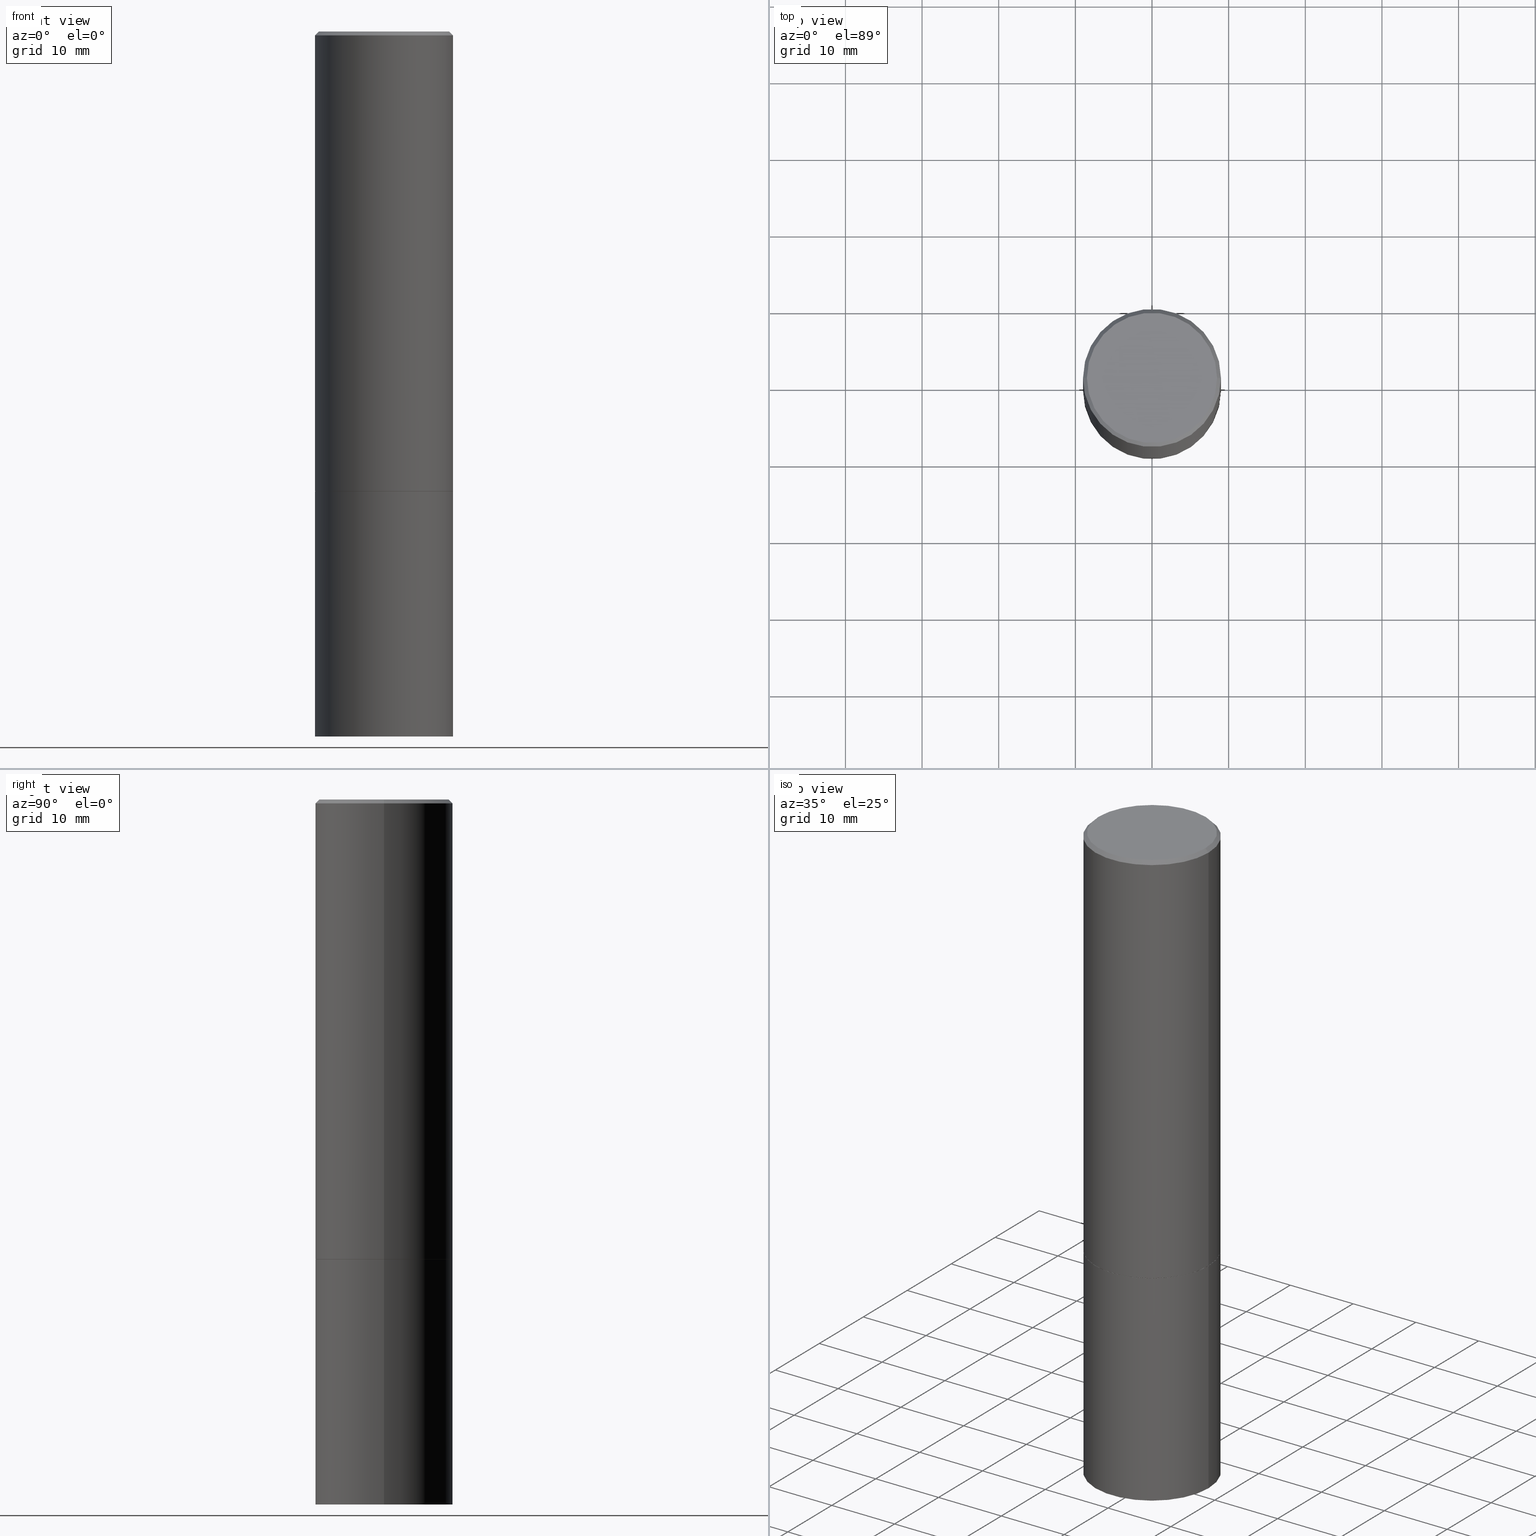
[diagram: canonical four-view strip — front | top / right | iso, engineering-drawing reading convention]
A machine part, canonical four-view strip (front | top / right | iso — engineering-drawing reading convention). The complete STEP part file that produces these views, byte-faithful:
ISO-10303-21;
HEADER;
FILE_DESCRIPTION (( 'STEP AP203' ),
    '1' );
FILE_NAME ('46372.STEP',
    '2024-02-28T10:33:42',
    ( '' ),
    ( '' ),
    'SwSTEP 2.0',
    'SolidWorks 2023',
    '' );
FILE_SCHEMA (( 'CONFIG_CONTROL_DESIGN' ));
ENDSEC;

DATA;
#1 = ORIENTED_EDGE ( 'NONE', *, *, #338, .T. ) ;
#2 = DIRECTION ( 'NONE',  ( -2.445468806185136597E-29, 3.491481338843145583E-15, 1.000000000000000000 ) ) ;
#3 = APPROVAL_STATUS ( 'not_yet_approved' ) ;
#4 = CIRCLE ( 'NONE', #339, 0.3543499999999999983 ) ;
#5 = EDGE_CURVE ( 'NONE', #284, #71, #72, .T. ) ;
#6 = CARTESIAN_POINT ( 'NONE',  ( 5.774240945164344150E-29, -8.244085737276433464E-15, -2.361199999999999743 ) ) ;
#7 = CARTESIAN_POINT ( 'NONE',  ( 4.890937612370293302E-31, -6.982962677686318726E-17, -0.02000000000000008021 ) ) ;
#8 = CC_DESIGN_PERSON_AND_ORGANIZATION_ASSIGNMENT ( #92, #320, ( #309 ) ) ;
#9 = CARTESIAN_POINT ( 'NONE',  ( 0.000000000000000000, 0.000000000000000000, 0.000000000000000000 ) ) ;
#10 = DIRECTION ( 'NONE',  ( 1.000000000000000000, -6.982962677686268288E-15, 0.000000000000000000 ) ) ;
#11 = AXIS2_PLACEMENT_3D ( 'NONE', #350, #103, #73 ) ;
#12 = CONICAL_SURFACE ( 'NONE', #41, 0.3533499999999999974, 0.7853981633974141952 ) ;
#13 = EDGE_CURVE ( 'NONE', #62, #360, #330, .T. ) ;
#14 = CARTESIAN_POINT ( 'NONE',  ( -0.3533499999999999974, -5.731576007458741264E-15, -2.362199999999999633 ) ) ;
#15 = DIRECTION ( 'NONE',  ( -2.445468806185136597E-29, 3.491481338843145583E-15, 1.000000000000000000 ) ) ;
#16 = FACE_OUTER_BOUND ( 'NONE', #224, .T. ) ;
#17 =( NAMED_UNIT ( * ) PLANE_ANGLE_UNIT ( ) SI_UNIT ( $, .RADIAN. ) );
#18 = CYLINDRICAL_SURFACE ( 'NONE', #32, 0.3543499999999998873 ) ;
#19 = DIRECTION ( 'NONE',  ( -2.445468806185136597E-29, 3.491481338843145583E-15, 1.000000000000000000 ) ) ;
#20 = ORIENTED_EDGE ( 'NONE', *, *, #239, .T. ) ;
#21 = CC_DESIGN_DATE_AND_TIME_ASSIGNMENT ( #94, #316, ( #258 ) ) ;
#22 = DIRECTION ( 'NONE',  ( 1.000000000000000000, -6.982962677686265922E-15, 0.000000000000000000 ) ) ;
#23 = CARTESIAN_POINT ( 'NONE',  ( 0.3533499999999999974, -1.071500708077572033E-14, -2.362199999999999633 ) ) ;
#24 = VECTOR ( 'NONE', #100, 39.37007874015748143 ) ;
#25 = PRODUCT_DEFINITION_FORMATION_WITH_SPECIFIED_SOURCE ( 'ANY', '', #309, .NOT_KNOWN. ) ;
#26 = EDGE_CURVE ( 'NONE', #151, #29, #81, .T. ) ;
#27 = ORIENTED_EDGE ( 'NONE', *, *, #170, .F. ) ;
#28 = FACE_OUTER_BOUND ( 'NONE', #96, .T. ) ;
#29 = VERTEX_POINT ( 'NONE', #45 ) ;
#30 = CARTESIAN_POINT ( 'NONE',  ( 2.334753571284400520E-15, 0.3343499999999996475, -1.165242529397154385E-15 ) ) ;
#31 = COORDINATED_UNIVERSAL_TIME_OFFSET ( 5, 0, .BEHIND. ) ;
#32 = AXIS2_PLACEMENT_3D ( 'NONE', #270, #76, #52 ) ;
#33 = ORIENTED_EDGE ( 'NONE', *, *, #366, .T. ) ;
#34 = CIRCLE ( 'NONE', #262, 0.3543499999999997208 ) ;
#35 = APPROVAL_DATE_TIME ( #279, #246 ) ;
#36 = ORIENTED_EDGE ( 'NONE', *, *, #5, .T. ) ;
#37 = DIRECTION ( 'NONE',  ( 2.438088387897960049E-29, -3.491481338843145188E-15, -1.000000000000000000 ) ) ;
#38 = VERTEX_POINT ( 'NONE', #183 ) ;
#39 = APPROVAL ( #288, 'UNSPECIFIED' ) ;
#40 = ADVANCED_FACE ( 'NONE', ( #326 ), #18, .T. ) ;
#41 = AXIS2_PLACEMENT_3D ( 'NONE', #250, #19, #113 ) ;
#42 = EDGE_LOOP ( 'NONE', ( #167, #141, #1, #280 ) ) ;
#43 = DIRECTION ( 'NONE',  ( 1.000000000000000000, -6.982962677686268288E-15, 0.000000000000000000 ) ) ;
#44 = CARTESIAN_POINT ( 'NONE',  ( 4.890937612370293302E-31, -6.982962677686318726E-17, -0.02000000000000008021 ) ) ;
#45 = CARTESIAN_POINT ( 'NONE',  ( -0.3543499999999997208, 2.404583198061263424E-15, -0.02000000000000008021 ) ) ;
#46 = VECTOR ( 'NONE', #79, 39.37007874015748143 ) ;
#47 = APPROVAL_PERSON_ORGANIZATION ( #121, #246, #229 ) ;
#48 = DIRECTION ( 'NONE',  ( 0.000000000000000000, 0.000000000000000000, 1.000000000000000000 ) ) ;
#49 = DIRECTION ( 'NONE',  ( -2.445468806185136597E-29, 3.491481338843145583E-15, 1.000000000000000000 ) ) ;
#50 = CARTESIAN_POINT ( 'NONE',  ( 0.3543499999999999983, -1.071849856211456176E-14, -2.361199999999999743 ) ) ;
#51 = AXIS2_PLACEMENT_3D ( 'NONE', #150, #349, #10 ) ;
#52 = DIRECTION ( 'NONE',  ( 1.000000000000000000, -6.982962677686266711E-15, 4.876176775795935232E-29 ) ) ;
#53 = PLANE ( 'NONE',  #82 ) ;
#54 = VERTEX_POINT ( 'NONE', #351 ) ;
#55 = AXIS2_PLACEMENT_3D ( 'NONE', #178, #209, #235 ) ;
#56 = APPROVAL_PERSON_ORGANIZATION ( #70, #318, #348 ) ;
#57 = ORIENTED_EDGE ( 'NONE', *, *, #337, .T. ) ;
#58 = PLANE ( 'NONE',  #344 ) ;
#59 = DIRECTION ( 'NONE',  ( 2.438088387897960049E-29, -3.491481338843145188E-15, -1.000000000000000000 ) ) ;
#60 = EDGE_LOOP ( 'NONE', ( #36, #175, #159, #335 ) ) ;
#61 = COORDINATED_UNIVERSAL_TIME_OFFSET ( 5, 0, .BEHIND. ) ;
#62 = VERTEX_POINT ( 'NONE', #129 ) ;
#63 = COORDINATED_UNIVERSAL_TIME_OFFSET ( 5, 0, .BEHIND. ) ;
#64 = CIRCLE ( 'NONE', #314, 0.3543499999999997208 ) ;
#65 = PERSON_AND_ORGANIZATION ( #69, #232 ) ;
#66 = DIRECTION ( 'NONE',  ( 1.000000000000000000, -6.982962677686266711E-15, 4.876061227832602160E-29 ) ) ;
#67 = EDGE_CURVE ( 'NONE', #54, #62, #263, .T. ) ;
#68 = ORIENTED_EDGE ( 'NONE', *, *, #133, .T. ) ;
#69 = PERSON ( 'UNSPECIFIED', 'UNSPECIFIED', 'UNSPECIFIED', ('UNSPECIFIED'), ('UNSPECIFIED'), ('UNSPECIFIED') ) ;
#70 = PERSON_AND_ORGANIZATION ( #69, #232 ) ;
#71 = VERTEX_POINT ( 'NONE', #14 ) ;
#72 = CIRCLE ( 'NONE', #11, 0.3533499999999999974 ) ;
#73 = DIRECTION ( 'NONE',  ( 1.000000000000000000, -6.982962677686265133E-15, 0.000000000000000000 ) ) ;
#74 = CARTESIAN_POINT ( 'NONE',  ( 5.774240945164344150E-29, -8.244085737276433464E-15, -2.361199999999999743 ) ) ;
#75 = CC_DESIGN_PERSON_AND_ORGANIZATION_ASSIGNMENT ( #119, #177, ( #25 ) ) ;
#76 = DIRECTION ( 'NONE',  ( -2.445468806185136597E-29, 3.491481338843145583E-15, 1.000000000000000000 ) ) ;
#77 = CARTESIAN_POINT ( 'NONE',  ( -0.3533499999999999974, -5.736874461806963666E-15, -2.362199999999999633 ) ) ;
#78 = LOCAL_TIME ( 5, 33, 42.00000000000000000, #225 ) ;
#79 = DIRECTION ( 'NONE',  ( 0.7071067811865471286, -7.319954787623254468E-15, -0.7071067811865479058 ) ) ;
#80 = EDGE_CURVE ( 'NONE', #240, #312, #296, .T. ) ;
#81 = LINE ( 'NONE', #266, #154 ) ;
#82 = AXIS2_PLACEMENT_3D ( 'NONE', #30, #304, #273 ) ;
#83 = CARTESIAN_POINT ( 'NONE',  ( 5.776686413970529753E-29, -8.247577218615278049E-15, -2.362199999999999633 ) ) ;
#84 = APPROVAL_PERSON_ORGANIZATION ( #199, #39, #347 ) ;
#85 = ORIENTED_EDGE ( 'NONE', *, *, #338, .F. ) ;
#86 = CARTESIAN_POINT ( 'NONE',  ( 0.3343499999999996475, -2.397327298921056737E-15, 4.268512490116958099E-18 ) ) ;
#87 = CARTESIAN_POINT ( 'NONE',  ( 0.3543499999999999983, -1.512055823412800029E-14, -3.621999999999999886 ) ) ;
#88 = ORIENTED_EDGE ( 'NONE', *, *, #315, .T. ) ;
#89 = FACE_OUTER_BOUND ( 'NONE', #276, .T. ) ;
#90 = CC_DESIGN_SECURITY_CLASSIFICATION ( #107, ( #25 ) ) ;
#91 = ORIENTED_EDGE ( 'NONE', *, *, #80, .T. ) ;
#92 = PERSON_AND_ORGANIZATION ( #69, #232 ) ;
#93 = PRODUCT_RELATED_PRODUCT_CATEGORY ( 'detail', '', ( #309 ) ) ;
#94 = DATE_AND_TIME ( #203, #78 ) ;
#95 = AXIS2_PLACEMENT_3D ( 'NONE', #74, #182, #22 ) ;
#96 = EDGE_LOOP ( 'NONE', ( #131, #277 ) ) ;
#97 = DIRECTION ( 'NONE',  ( -1.000000000000000000, 6.982962677686265922E-15, -4.876176775795935793E-29 ) ) ;
#98 = DESIGN_CONTEXT ( 'detailed design', #244, 'design' ) ;
#99 = DATE_AND_TIME ( #251, #148 ) ;
#100 = DIRECTION ( 'NONE',  ( -2.445468806185136877E-29, 3.491481338843145188E-15, 1.000000000000000000 ) ) ;
#101 = COORDINATED_UNIVERSAL_TIME_OFFSET ( 5, 0, .BEHIND. ) ;
#102 = ORIENTED_EDGE ( 'NONE', *, *, #242, .F. ) ;
#103 = DIRECTION ( 'NONE',  ( -2.445468806185136597E-29, 3.491481338843145583E-15, 1.000000000000000000 ) ) ;
#104 = VECTOR ( 'NONE', #142, 39.37007874015748143 ) ;
#105 = CARTESIAN_POINT ( 'NONE',  ( 4.890937612370293302E-31, -6.982962677686318726E-17, -0.02000000000000008021 ) ) ;
#106 = CIRCLE ( 'NONE', #195, 0.3543499999999999983 ) ;
#107 = SECURITY_CLASSIFICATION ( '', '', #125 ) ;
#108 = ADVANCED_FACE ( 'NONE', ( #112 ), #164, .T. ) ;
#109 = CC_DESIGN_PERSON_AND_ORGANIZATION_ASSIGNMENT ( #138, #179, ( #25 ) ) ;
#110 = APPLICATION_PROTOCOL_DEFINITION ( 'international standard', 'config_control_design', 1994, #226 ) ;
#111 =( CONVERSION_BASED_UNIT ( 'INCH', #299 ) LENGTH_UNIT ( ) NAMED_UNIT ( #220 ) );
#112 = FACE_OUTER_BOUND ( 'NONE', #118, .T. ) ;
#113 = DIRECTION ( 'NONE',  ( 1.000000000000000000, -6.982962677686265133E-15, 0.000000000000000000 ) ) ;
#114 =( LENGTH_UNIT ( ) NAMED_UNIT ( * ) SI_UNIT ( $, .METRE. ) );
#115 = CARTESIAN_POINT ( 'NONE',  ( 4.890937612370293302E-31, -6.982962677686318726E-17, -0.02000000000000008021 ) ) ;
#116 = PLANE ( 'NONE',  #346 ) ;
#117 = ORIENTED_EDGE ( 'NONE', *, *, #158, .T. ) ;
#118 = EDGE_LOOP ( 'NONE', ( #227, #306, #171, #88 ) ) ;
#119 = PERSON_AND_ORGANIZATION ( #69, #232 ) ;
#120 = ORIENTED_EDGE ( 'NONE', *, *, #342, .T. ) ;
#121 = PERSON_AND_ORGANIZATION ( #69, #232 ) ;
#122 = VECTOR ( 'NONE', #361, 39.37007874015748854 ) ;
#123 = CC_DESIGN_PERSON_AND_ORGANIZATION_ASSIGNMENT ( #311, #174, ( #258 ) ) ;
#124 = ORIENTED_EDGE ( 'NONE', *, *, #170, .T. ) ;
#125 = SECURITY_CLASSIFICATION_LEVEL ( 'unclassified' ) ;
#126 = CYLINDRICAL_SURFACE ( 'NONE', #289, 0.3543499999999999983 ) ;
#127 = DIRECTION ( 'NONE',  ( -2.445468806185136597E-29, 3.491481338843145583E-15, 1.000000000000000000 ) ) ;
#128 = CIRCLE ( 'NONE', #51, 0.3543499999999999983 ) ;
#129 = CARTESIAN_POINT ( 'NONE',  ( -0.3543499999999999983, -7.929053129786659628E-15, -2.362199999999999633 ) ) ;
#130 = VERTEX_POINT ( 'NONE', #87 ) ;
#131 = ORIENTED_EDGE ( 'NONE', *, *, #5, .F. ) ;
#132 = AXIS2_PLACEMENT_3D ( 'NONE', #161, #300, #268 ) ;
#133 = EDGE_CURVE ( 'NONE', #327, #151, #146, .T. ) ;
#134 = ADVANCED_FACE ( 'NONE', ( #188 ), #212, .T. ) ;
#135 = DIRECTION ( 'NONE',  ( -2.438088387897960049E-29, 3.491481338843145188E-15, 1.000000000000000000 ) ) ;
#136 = EDGE_LOOP ( 'NONE', ( #149, #117, #124, #194 ) ) ;
#137 = FACE_OUTER_BOUND ( 'NONE', #60, .T. ) ;
#138 = PERSON_AND_ORGANIZATION ( #69, #232 ) ;
#139 = CC_DESIGN_APPROVAL ( #318, ( #258 ) ) ;
#140 = DATE_AND_TIME ( #286, #307 ) ;
#141 = ORIENTED_EDGE ( 'NONE', *, *, #192, .T. ) ;
#142 = DIRECTION ( 'NONE',  ( -2.445468806185136877E-29, 3.491481338843145188E-15, 1.000000000000000000 ) ) ;
#143 = APPROVAL_STATUS ( 'not_yet_approved' ) ;
#144 = CC_DESIGN_PERSON_AND_ORGANIZATION_ASSIGNMENT ( #65, #341, ( #107 ) ) ;
#145 = CARTESIAN_POINT ( 'NONE',  ( 0.3543499999999998873, -2.474412824838127905E-15, 1.727873240503289188E-29 ) ) ;
#146 = CIRCLE ( 'NONE', #248, 0.3543499999999999983 ) ;
#147 = ORIENTED_EDGE ( 'NONE', *, *, #254, .T. ) ;
#148 = LOCAL_TIME ( 5, 33, 42.00000000000000000, #61 ) ;
#149 = ORIENTED_EDGE ( 'NONE', *, *, #26, .F. ) ;
#150 = CARTESIAN_POINT ( 'NONE',  ( 5.776686413970529753E-29, -8.247577218615278049E-15, -2.362199999999999633 ) ) ;
#151 = VERTEX_POINT ( 'NONE', #324 ) ;
#152 = CARTESIAN_POINT ( 'NONE',  ( 8.857488016002564476E-29, -1.264614540928987199E-14, -3.621999999999999886 ) ) ;
#153 = DIRECTION ( 'NONE',  ( 1.000000000000000000, -6.982962677686266711E-15, 4.876176775795935793E-29 ) ) ;
#154 = VECTOR ( 'NONE', #163, 39.37007874015748143 ) ;
#155 = CONICAL_SURFACE ( 'NONE', #249, 0.3543499999999997208, 0.7853981633974477239 ) ;
#156 = DIRECTION ( 'NONE',  ( 2.445468806185136597E-29, -3.491481338843145583E-15, -1.000000000000000000 ) ) ;
#157 = DIRECTION ( 'NONE',  ( 1.000000000000000000, 0.000000000000000000, 0.000000000000000000 ) ) ;
#158 = EDGE_CURVE ( 'NONE', #151, #327, #228, .T. ) ;
#159 = ORIENTED_EDGE ( 'NONE', *, *, #133, .F. ) ;
#160 = CARTESIAN_POINT ( 'NONE',  ( 0.000000000000000000, 0.000000000000000000, 0.000000000000000000 ) ) ;
#161 = CARTESIAN_POINT ( 'NONE',  ( 0.000000000000000000, 0.000000000000000000, 0.000000000000000000 ) ) ;
#162 = DIRECTION ( 'NONE',  ( -2.445468806185136597E-29, 3.491481338843145583E-15, 1.000000000000000000 ) ) ;
#163 = DIRECTION ( 'NONE',  ( -2.445468806185136877E-29, 3.491481338843145188E-15, 1.000000000000000000 ) ) ;
#164 = CONICAL_SURFACE ( 'NONE', #295, 0.3543499999999997208, 0.7853981633974477239 ) ;
#165 = ADVANCED_FACE ( 'NONE', ( #89 ), #58, .F. ) ;
#166 = DIRECTION ( 'NONE',  ( -0.7071067811865471286, 2.468850131082252722E-15, -0.7071067811865479058 ) ) ;
#167 = ORIENTED_EDGE ( 'NONE', *, *, #67, .F. ) ;
#168 = AXIS2_PLACEMENT_3D ( 'NONE', #196, #190, #275 ) ;
#169 = DIRECTION ( 'NONE',  ( 1.000000000000000000, -6.982962677686266711E-15, 4.876061227832602160E-29 ) ) ;
#170 = EDGE_CURVE ( 'NONE', #327, #312, #204, .T. ) ;
#171 = ORIENTED_EDGE ( 'NONE', *, *, #242, .T. ) ;
#172 = EDGE_LOOP ( 'NONE', ( #214, #91, #259, #102 ) ) ;
#173 = FACE_OUTER_BOUND ( 'NONE', #243, .T. ) ;
#174 = PERSON_AND_ORGANIZATION_ROLE ( 'creator' ) ;
#175 = ORIENTED_EDGE ( 'NONE', *, *, #207, .T. ) ;
#176 = APPROVAL_DATE_TIME ( #283, #318 ) ;
#177 = PERSON_AND_ORGANIZATION_ROLE ( 'creator' ) ;
#178 = CARTESIAN_POINT ( 'NONE',  ( 0.000000000000000000, 0.000000000000000000, 0.000000000000000000 ) ) ;
#179 = PERSON_AND_ORGANIZATION_ROLE ( 'design_supplier' ) ;
#180 = AXIS2_PLACEMENT_3D ( 'NONE', #9, #48, #157 ) ;
#181 = CARTESIAN_POINT ( 'NONE',  ( 5.776686413970529753E-29, -8.247577218615278049E-15, -2.362199999999999633 ) ) ;
#182 = DIRECTION ( 'NONE',  ( -2.445468806185136597E-29, 3.491481338843145583E-15, 1.000000000000000000 ) ) ;
#183 = CARTESIAN_POINT ( 'NONE',  ( -0.3343499999999996475, 2.369668384672832169E-15, 4.268512490083961526E-18 ) ) ;
#184 = DIRECTION ( 'NONE',  ( -0.7071067811865232589, 7.493145998870265808E-15, 0.7071067811865715536 ) ) ;
#185 = ADVANCED_FACE ( 'NONE', ( #206 ), #319, .T. ) ;
#186 = DIRECTION ( 'NONE',  ( 1.000000000000000000, -6.982962677686266711E-15, 0.000000000000000000 ) ) ;
#187 =( GEOMETRIC_REPRESENTATION_CONTEXT ( 3 ) GLOBAL_UNCERTAINTY_ASSIGNED_CONTEXT ( ( #265 ) ) GLOBAL_UNIT_ASSIGNED_CONTEXT ( ( #111, #17, #237 ) ) REPRESENTATION_CONTEXT ( 'NONE', 'WORKASPACE' ) );
#188 = FACE_OUTER_BOUND ( 'NONE', #136, .T. ) ;
#189 = CARTESIAN_POINT ( 'NONE',  ( 8.857488016002564476E-29, -1.264614540928987199E-14, -3.621999999999999886 ) ) ;
#190 = DIRECTION ( 'NONE',  ( -2.445468806185136597E-29, 3.491481338843145583E-15, 1.000000000000000000 ) ) ;
#191 = CARTESIAN_POINT ( 'NONE',  ( -0.3543499999999997208, 2.404583198061263424E-15, -0.02000000000000008021 ) ) ;
#192 = EDGE_CURVE ( 'NONE', #54, #130, #106, .T. ) ;
#193 = DIRECTION ( 'NONE',  ( -1.000000000000000000, 6.982962677686266711E-15, 0.000000000000000000 ) ) ;
#194 = ORIENTED_EDGE ( 'NONE', *, *, #315, .F. ) ;
#195 = AXIS2_PLACEMENT_3D ( 'NONE', #152, #15, #233 ) ;
#196 = CARTESIAN_POINT ( 'NONE',  ( 5.776686413970529753E-29, -8.247577218615278049E-15, -2.362199999999999633 ) ) ;
#197 = ORIENTED_EDGE ( 'NONE', *, *, #192, .F. ) ;
#198 = PLANE ( 'NONE',  #218 ) ;
#199 = PERSON_AND_ORGANIZATION ( #69, #232 ) ;
#200 = CALENDAR_DATE ( 2024, 28, 2 ) ;
#201 = CARTESIAN_POINT ( 'NONE',  ( 0.3543499999999999983, -2.474412824838128694E-15, 1.727873240503289749E-29 ) ) ;
#202 = CLOSED_SHELL ( 'NONE', ( #255, #40, #303, #108, #134, #291, #269, #231 ) ) ;
#203 = CALENDAR_DATE ( 2024, 28, 2 ) ;
#204 = LINE ( 'NONE', #145, #24 ) ;
#205 = ORIENTED_EDGE ( 'NONE', *, *, #26, .T. ) ;
#206 = FACE_OUTER_BOUND ( 'NONE', #42, .T. ) ;
#207 = EDGE_CURVE ( 'NONE', #71, #151, #354, .T. ) ;
#208 = EDGE_CURVE ( 'NONE', #312, #29, #64, .T. ) ;
#209 = DIRECTION ( 'NONE',  ( -2.445468806185136597E-29, 3.491481338843145583E-15, 1.000000000000000000 ) ) ;
#210 = FACE_OUTER_BOUND ( 'NONE', #297, .T. ) ;
#211 = VECTOR ( 'NONE', #184, 39.37007874015748854 ) ;
#212 = CYLINDRICAL_SURFACE ( 'NONE', #132, 0.3543499999999998873 ) ;
#213 = DIRECTION ( 'NONE',  ( -2.445468806185136597E-29, 3.491481338843145583E-15, 1.000000000000000000 ) ) ;
#214 = ORIENTED_EDGE ( 'NONE', *, *, #219, .F. ) ;
#215 = DIRECTION ( 'NONE',  ( -2.445468806185136877E-29, 3.491481338843145188E-15, 1.000000000000000000 ) ) ;
#216 = CIRCLE ( 'NONE', #302, 0.3343499999999996475 ) ;
#217 = DIRECTION ( 'NONE',  ( 1.000000000000000000, -6.982962677686265922E-15, 4.876176775795935793E-29 ) ) ;
#218 = AXIS2_PLACEMENT_3D ( 'NONE', #83, #135, #217 ) ;
#219 = EDGE_CURVE ( 'NONE', #240, #38, #282, .T. ) ;
#220 = DIMENSIONAL_EXPONENTS ( 1.000000000000000000, 0.000000000000000000, 0.000000000000000000, 0.000000000000000000, 0.000000000000000000, 0.000000000000000000, 0.000000000000000000 ) ;
#221 = DIRECTION ( 'NONE',  ( 1.000000000000000000, -6.982962677686265922E-15, 0.000000000000000000 ) ) ;
#222 = ORIENTED_EDGE ( 'NONE', *, *, #67, .T. ) ;
#223 = EDGE_LOOP ( 'NONE', ( #68, #205, #343, #27 ) ) ;
#224 = EDGE_LOOP ( 'NONE', ( #33, #222, #247, #85 ) ) ;
#225 = COORDINATED_UNIVERSAL_TIME_OFFSET ( 5, 0, .BEHIND. ) ;
#226 = APPLICATION_CONTEXT ( 'configuration controlled 3d designs of mechanical parts and assemblies' ) ;
#227 = ORIENTED_EDGE ( 'NONE', *, *, #80, .F. ) ;
#228 = CIRCLE ( 'NONE', #95, 0.3543499999999999983 ) ;
#229 = APPROVAL_ROLE ( '' ) ;
#230 = ADVANCED_BREP_SHAPE_REPRESENTATION ( '46372', ( #261, #264, #180 ), #187 ) ;
#231 = ADVANCED_FACE ( 'NONE', ( #334 ), #53, .F. ) ;
#232 = ORGANIZATION ( 'UNSPECIFIED', 'UNSPECIFIED', '' ) ;
#233 = DIRECTION ( 'NONE',  ( 1.000000000000000000, -6.982962677686265922E-15, 0.000000000000000000 ) ) ;
#234 = CARTESIAN_POINT ( 'NONE',  ( -1.043851414335219820E-46, 1.490343170380447200E-32, 4.268512490100411279E-18 ) ) ;
#235 = DIRECTION ( 'NONE',  ( 1.000000000000000000, -6.982962677686266711E-15, 4.876176775795935793E-29 ) ) ;
#236 = DIRECTION ( 'NONE',  ( -1.000000000000000000, 6.982962677686266711E-15, 0.000000000000000000 ) ) ;
#237 =( NAMED_UNIT ( * ) SI_UNIT ( $, .STERADIAN. ) SOLID_ANGLE_UNIT ( ) );
#238 = CC_DESIGN_APPROVAL ( #39, ( #107 ) ) ;
#239 = EDGE_CURVE ( 'NONE', #284, #327, #336, .T. ) ;
#240 = VERTEX_POINT ( 'NONE', #86 ) ;
#241 = DIRECTION ( 'NONE',  ( -1.000000000000000000, 6.982962677686265922E-15, -4.876176775795935793E-29 ) ) ;
#242 = EDGE_CURVE ( 'NONE', #38, #29, #362, .T. ) ;
#243 = EDGE_LOOP ( 'NONE', ( #323, #197 ) ) ;
#244 = APPLICATION_CONTEXT ( 'configuration controlled 3d designs of mechanical parts and assemblies' ) ;
#245 = CC_DESIGN_APPROVAL ( #246, ( #25 ) ) ;
#246 = APPROVAL ( #143, 'UNSPECIFIED' ) ;
#247 = ORIENTED_EDGE ( 'NONE', *, *, #337, .F. ) ;
#248 = AXIS2_PLACEMENT_3D ( 'NONE', #6, #127, #352 ) ;
#249 = AXIS2_PLACEMENT_3D ( 'NONE', #44, #156, #236 ) ;
#250 = CARTESIAN_POINT ( 'NONE',  ( 5.776686413970529753E-29, -8.247577218615278049E-15, -2.362199999999999633 ) ) ;
#251 = CALENDAR_DATE ( 2024, 28, 2 ) ;
#252 = CARTESIAN_POINT ( 'NONE',  ( -1.043851414335219820E-46, 1.490343170380447200E-32, 4.268512490100411279E-18 ) ) ;
#253 = APPLICATION_PROTOCOL_DEFINITION ( 'international standard', 'config_control_design', 1994, #244 ) ;
#254 = EDGE_CURVE ( 'NONE', #71, #284, #281, .T. ) ;
#255 = ADVANCED_FACE ( 'NONE', ( #137 ), #12, .T. ) ;
#256 = LOCAL_TIME ( 5, 33, 42.00000000000000000, #101 ) ;
#257 = ORIENTED_EDGE ( 'NONE', *, *, #219, .T. ) ;
#258 = PRODUCT_DEFINITION ( 'UNKNOWN', '', #25, #98 ) ;
#259 = ORIENTED_EDGE ( 'NONE', *, *, #208, .T. ) ;
#260 = CLOSED_SHELL ( 'NONE', ( #329, #267, #165, #185 ) ) ;
#261 = MANIFOLD_SOLID_BREP ( 'Body-Move/Copy2[1]', #260 ) ;
#262 = AXIS2_PLACEMENT_3D ( 'NONE', #7, #355, #298 ) ;
#263 = LINE ( 'NONE', #358, #321 ) ;
#264 = MANIFOLD_SOLID_BREP ( 'Body-Move/Copy2[2]', #202 ) ;
#265 = UNCERTAINTY_MEASURE_WITH_UNIT (LENGTH_MEASURE( 1.000000000000000082E-05 ), #111, 'distance_accuracy_value', 'NONE');
#266 = CARTESIAN_POINT ( 'NONE',  ( -0.3543499999999998873, 2.517808184165914208E-15, -1.743024649231825225E-29 ) ) ;
#267 = ADVANCED_FACE ( 'NONE', ( #173 ), #116, .T. ) ;
#268 = DIRECTION ( 'NONE',  ( 1.000000000000000000, -6.982962677686266711E-15, 4.876176775795935232E-29 ) ) ;
#269 = ADVANCED_FACE ( 'NONE', ( #28 ), #198, .F. ) ;
#270 = CARTESIAN_POINT ( 'NONE',  ( 0.000000000000000000, 0.000000000000000000, 0.000000000000000000 ) ) ;
#271 = PRODUCT_DEFINITION_SHAPE ( 'NONE', 'NONE',  #258 ) ;
#272 = ORIENTED_EDGE ( 'NONE', *, *, #13, .T. ) ;
#273 = DIRECTION ( 'NONE',  ( -1.000000000000000000, 6.982962677686265922E-15, -4.876176775795935793E-29 ) ) ;
#274 = AXIS2_PLACEMENT_3D ( 'NONE', #234, #213, #169 ) ;
#275 = DIRECTION ( 'NONE',  ( 1.000000000000000000, -6.982962677686265133E-15, 0.000000000000000000 ) ) ;
#276 = EDGE_LOOP ( 'NONE', ( #57, #272 ) ) ;
#277 = ORIENTED_EDGE ( 'NONE', *, *, #254, .F. ) ;
#278 = CC_DESIGN_DATE_AND_TIME_ASSIGNMENT ( #140, #285, ( #107 ) ) ;
#279 = DATE_AND_TIME ( #310, #256 ) ;
#280 = ORIENTED_EDGE ( 'NONE', *, *, #13, .F. ) ;
#281 = CIRCLE ( 'NONE', #168, 0.3533499999999999974 ) ;
#282 = CIRCLE ( 'NONE', #274, 0.3343499999999996475 ) ;
#283 = DATE_AND_TIME ( #200, #359 ) ;
#284 = VERTEX_POINT ( 'NONE', #333 ) ;
#285 = DATE_TIME_ROLE ( 'classification_date' ) ;
#286 = CALENDAR_DATE ( 2024, 28, 2 ) ;
#287 = LINE ( 'NONE', #201, #104 ) ;
#288 = APPROVAL_STATUS ( 'not_yet_approved' ) ;
#289 = AXIS2_PLACEMENT_3D ( 'NONE', #160, #356, #153 ) ;
#290 = ORIENTED_EDGE ( 'NONE', *, *, #207, .F. ) ;
#291 = ADVANCED_FACE ( 'NONE', ( #210 ), #322, .T. ) ;
#292 = DIRECTION ( 'NONE',  ( -2.445468806185136597E-29, 3.491481338843145583E-15, 1.000000000000000000 ) ) ;
#293 = CARTESIAN_POINT ( 'NONE',  ( 5.776686413970529753E-29, -8.247577218615278049E-15, -2.362199999999999633 ) ) ;
#294 = FACE_OUTER_BOUND ( 'NONE', #172, .T. ) ;
#295 = AXIS2_PLACEMENT_3D ( 'NONE', #115, #364, #193 ) ;
#296 = LINE ( 'NONE', #301, #46 ) ;
#297 = EDGE_LOOP ( 'NONE', ( #290, #147, #20, #305 ) ) ;
#298 = DIRECTION ( 'NONE',  ( 1.000000000000000000, -6.982962677686266711E-15, 0.000000000000000000 ) ) ;
#299 = LENGTH_MEASURE_WITH_UNIT ( LENGTH_MEASURE( 0.02539999999999999897 ), #114 );
#300 = DIRECTION ( 'NONE',  ( -2.445468806185136597E-29, 3.491481338843145583E-15, 1.000000000000000000 ) ) ;
#301 = CARTESIAN_POINT ( 'NONE',  ( 0.3543499999999997208, -2.500847092287203718E-15, -0.02000000000000008021 ) ) ;
#302 = AXIS2_PLACEMENT_3D ( 'NONE', #252, #2, #66 ) ;
#303 = ADVANCED_FACE ( 'NONE', ( #294 ), #155, .T. ) ;
#304 = DIRECTION ( 'NONE',  ( 2.438088387897960049E-29, -3.491481338843145188E-15, -1.000000000000000000 ) ) ;
#305 = ORIENTED_EDGE ( 'NONE', *, *, #158, .F. ) ;
#306 = ORIENTED_EDGE ( 'NONE', *, *, #342, .F. ) ;
#307 = LOCAL_TIME ( 5, 33, 42.00000000000000000, #63 ) ;
#308 = CARTESIAN_POINT ( 'NONE',  ( 2.474412824838217047E-15, 0.3543499999999873973, -3.622000000000000774 ) ) ;
#309 = PRODUCT ( '46372', '46372', '', ( #363 ) ) ;
#310 = CALENDAR_DATE ( 2024, 28, 2 ) ;
#311 = PERSON_AND_ORGANIZATION ( #69, #232 ) ;
#312 = VERTEX_POINT ( 'NONE', #328 ) ;
#313 = AXIS2_PLACEMENT_3D ( 'NONE', #181, #292, #43 ) ;
#314 = AXIS2_PLACEMENT_3D ( 'NONE', #105, #325, #186 ) ;
#315 = EDGE_CURVE ( 'NONE', #29, #312, #34, .T. ) ;
#316 = DATE_TIME_ROLE ( 'creation_date' ) ;
#317 = APPROVAL_DATE_TIME ( #99, #39 ) ;
#318 = APPROVAL ( #3, 'UNSPECIFIED' ) ;
#319 = CYLINDRICAL_SURFACE ( 'NONE', #55, 0.3543499999999999983 ) ;
#320 = PERSON_AND_ORGANIZATION_ROLE ( 'design_owner' ) ;
#321 = VECTOR ( 'NONE', #215, 39.37007874015748143 ) ;
#322 = CONICAL_SURFACE ( 'NONE', #357, 0.3533499999999999974, 0.7853981633974141952 ) ;
#323 = ORIENTED_EDGE ( 'NONE', *, *, #366, .F. ) ;
#324 = CARTESIAN_POINT ( 'NONE',  ( -0.3543499999999999983, -1.639149497860731807E-15, -2.361199999999999743 ) ) ;
#325 = DIRECTION ( 'NONE',  ( -2.445468806185136597E-29, 3.491481338843145583E-15, 1.000000000000000000 ) ) ;
#326 = FACE_OUTER_BOUND ( 'NONE', #223, .T. ) ;
#327 = VERTEX_POINT ( 'NONE', #50 ) ;
#328 = CARTESIAN_POINT ( 'NONE',  ( 0.3543499999999997208, -2.500847092287203718E-15, -0.02000000000000008021 ) ) ;
#329 = ADVANCED_FACE ( 'NONE', ( #16 ), #126, .T. ) ;
#330 = CIRCLE ( 'NONE', #313, 0.3543499999999999983 ) ;
#331 = VECTOR ( 'NONE', #166, 39.37007874015748143 ) ;
#332 = CARTESIAN_POINT ( 'NONE',  ( 0.3543499999999999983, -1.072199004345340635E-14, -2.362199999999999633 ) ) ;
#333 = CARTESIAN_POINT ( 'NONE',  ( 0.3533499999999999974, -1.071500708077572033E-14, -2.362199999999999633 ) ) ;
#334 = FACE_OUTER_BOUND ( 'NONE', #365, .T. ) ;
#335 = ORIENTED_EDGE ( 'NONE', *, *, #239, .F. ) ;
#336 = LINE ( 'NONE', #23, #122 ) ;
#337 = EDGE_CURVE ( 'NONE', #360, #62, #128, .T. ) ;
#338 = EDGE_CURVE ( 'NONE', #130, #360, #287, .T. ) ;
#339 = AXIS2_PLACEMENT_3D ( 'NONE', #189, #49, #221 ) ;
#340 = SHAPE_DEFINITION_REPRESENTATION ( #271, #230 ) ;
#341 = PERSON_AND_ORGANIZATION_ROLE ( 'classification_officer' ) ;
#342 = EDGE_CURVE ( 'NONE', #38, #240, #216, .T. ) ;
#343 = ORIENTED_EDGE ( 'NONE', *, *, #208, .F. ) ;
#344 = AXIS2_PLACEMENT_3D ( 'NONE', #345, #37, #97 ) ;
#345 = CARTESIAN_POINT ( 'NONE',  ( 2.474412824838185886E-15, 0.3543499999999917272, -2.362200000000000966 ) ) ;
#346 = AXIS2_PLACEMENT_3D ( 'NONE', #308, #59, #241 ) ;
#347 = APPROVAL_ROLE ( '' ) ;
#348 = APPROVAL_ROLE ( '' ) ;
#349 = DIRECTION ( 'NONE',  ( -2.445468806185136597E-29, 3.491481338843145583E-15, 1.000000000000000000 ) ) ;
#350 = CARTESIAN_POINT ( 'NONE',  ( 5.776686413970529753E-29, -8.247577218615278049E-15, -2.362199999999999633 ) ) ;
#351 = CARTESIAN_POINT ( 'NONE',  ( -0.3543499999999999983, -7.929053129786659628E-15, -3.621999999999999886 ) ) ;
#352 = DIRECTION ( 'NONE',  ( 1.000000000000000000, -6.982962677686265922E-15, 0.000000000000000000 ) ) ;
#353 = DIRECTION ( 'NONE',  ( 1.000000000000000000, -6.982962677686265133E-15, 0.000000000000000000 ) ) ;
#354 = LINE ( 'NONE', #77, #211 ) ;
#355 = DIRECTION ( 'NONE',  ( -2.445468806185136597E-29, 3.491481338843145583E-15, 1.000000000000000000 ) ) ;
#356 = DIRECTION ( 'NONE',  ( -2.445468806185136597E-29, 3.491481338843145583E-15, 1.000000000000000000 ) ) ;
#357 = AXIS2_PLACEMENT_3D ( 'NONE', #293, #162, #353 ) ;
#358 = CARTESIAN_POINT ( 'NONE',  ( -0.3543499999999999983, 2.517808184165914997E-15, -1.743024649231826066E-29 ) ) ;
#359 = LOCAL_TIME ( 5, 33, 42.00000000000000000, #31 ) ;
#360 = VERTEX_POINT ( 'NONE', #332 ) ;
#361 = DIRECTION ( 'NONE',  ( 0.7071067811865232589, -2.468850131082003836E-15, 0.7071067811865715536 ) ) ;
#362 = LINE ( 'NONE', #191, #331 ) ;
#363 = MECHANICAL_CONTEXT ( 'NONE', #226, 'mechanical' ) ;
#364 = DIRECTION ( 'NONE',  ( 2.445468806185136597E-29, -3.491481338843145583E-15, -1.000000000000000000 ) ) ;
#365 = EDGE_LOOP ( 'NONE', ( #120, #257 ) ) ;
#366 = EDGE_CURVE ( 'NONE', #130, #54, #4, .T. ) ;
ENDSEC;
END-ISO-10303-21;
